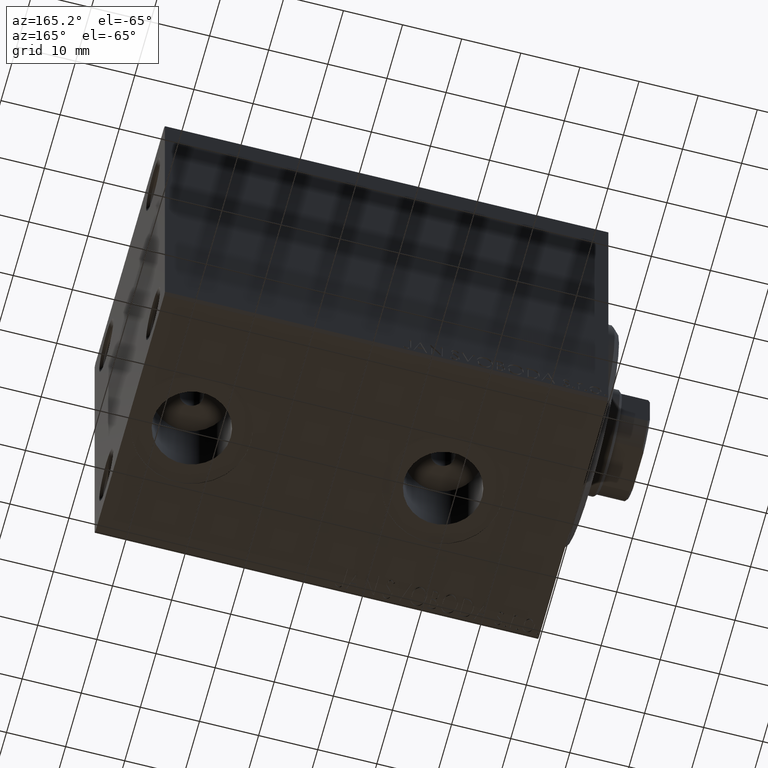
[diagram: clean part render]
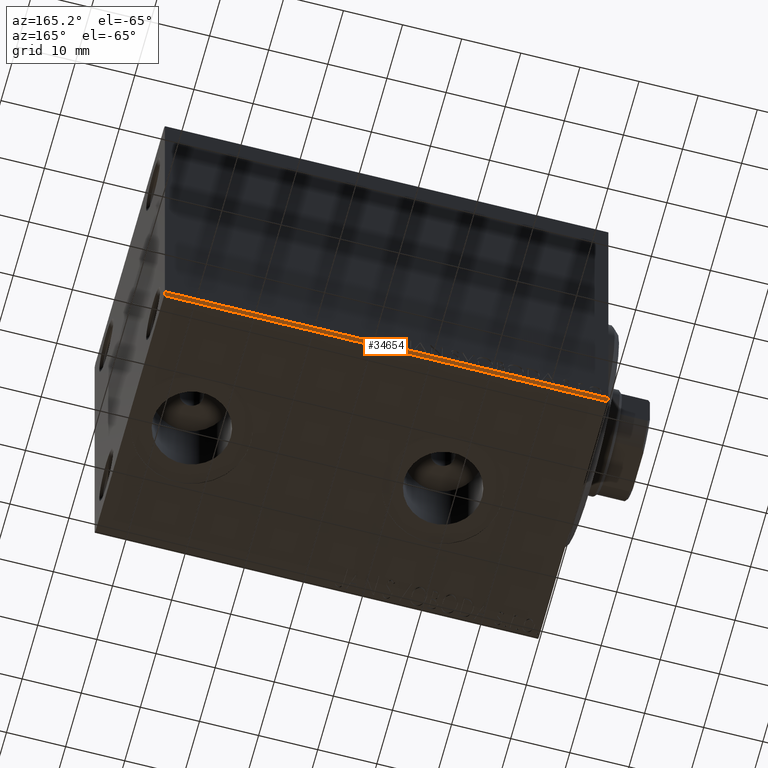
[diagram: same view with one face highlighted and labeled with its STEP entity id]
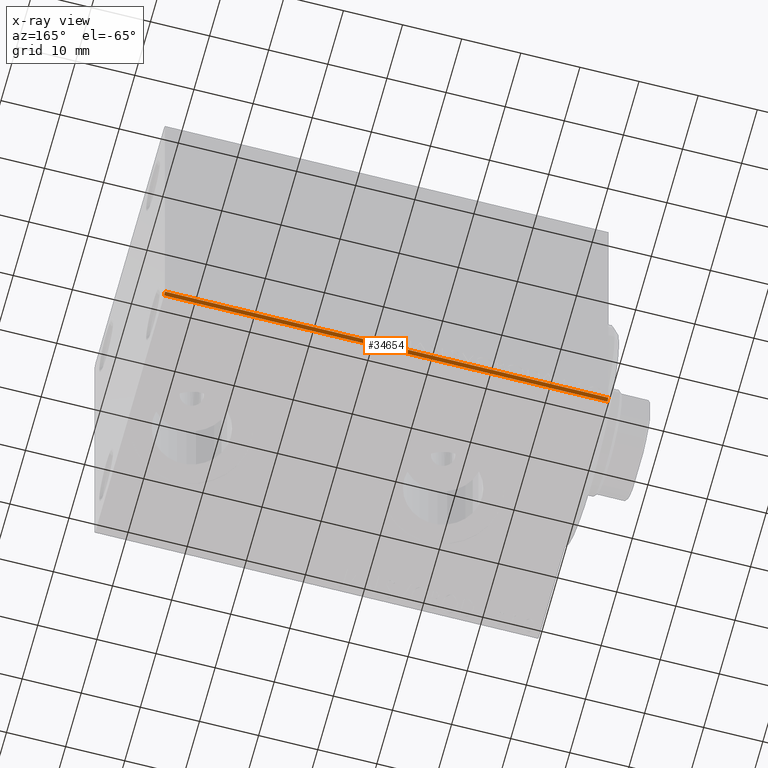
[diagram: x-ray of the same camera — body ghosted, the highlighted face saturated]
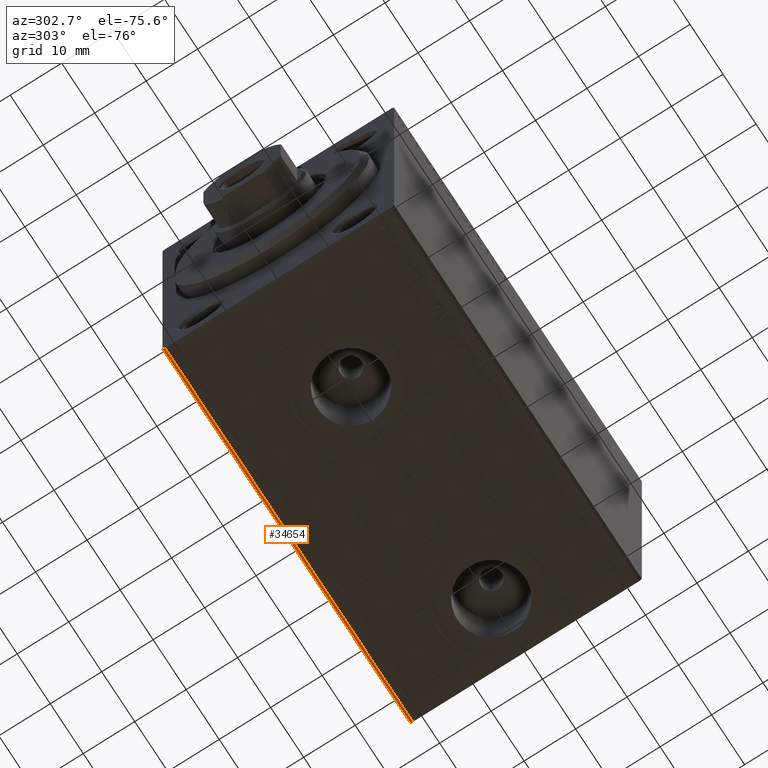
[diagram: same view with one face highlighted and labeled with its STEP entity id]
A machine part, auxiliary view. The second image highlights one B-rep face of the part: STEP entity #34654.
The next image is the same camera in x-ray: the body ghosted, the highlighted face saturated — about 0% of this face is hidden behind the body in this view.
A second angle (auxiliary view) of the same face is appended — the face is thin or edge-on in the first view.
In plain terms, the highlighted planar face has unit normal (0, -0.7071, 0.7071).
Its self-contained STEP definition (entity closure, byte-faithful):
#826 = EDGE_CURVE ( 'NONE', #36593, #33685, #36766, .T. ) ;
#2879 = CARTESIAN_POINT ( 'NONE',  ( 75.00000000000000000, 22.50000000000000711, -32.00000000000000711 ) ) ;
#4814 = VECTOR ( 'NONE', #10726, 1000.000000000000000 ) ;
#7413 = EDGE_CURVE ( 'NONE', #23906, #36593, #21330, .T. ) ;
#8327 = CARTESIAN_POINT ( 'NONE',  ( 75.00000000000000000, 22.50000000000000711, -32.00000000000000711 ) ) ;
#10244 = DIRECTION ( 'NONE',  ( -1.000000000000000000, 0.000000000000000000, 0.000000000000000000 ) ) ;
#10726 = DIRECTION ( 'NONE',  ( -0.000000000000000000, 0.7071067811865378028, 0.7071067811865573427 ) ) ;
#12015 = CARTESIAN_POINT ( 'NONE',  ( 75.00000000000000000, 22.50000000000000711, -32.00000000000000711 ) ) ;
#12555 = DIRECTION ( 'NONE',  ( 0.000000000000000000, -0.7071067811865378028, -0.7071067811865573427 ) ) ;
#13006 = LINE ( 'NONE', #26366, #45065 ) ;
#14563 = ORIENTED_EDGE ( 'NONE', *, *, #826, .F. ) ;
#14634 = PLANE ( 'NONE',  #42051 ) ;
#14971 = ORIENTED_EDGE ( 'NONE', *, *, #7413, .F. ) ;
#15135 = DIRECTION ( 'NONE',  ( 1.000000000000000000, 0.000000000000000000, 0.000000000000000000 ) ) ;
#15792 = EDGE_LOOP ( 'NONE', ( #14971, #41625, #26419, #14563 ) ) ;
#17425 = CARTESIAN_POINT ( 'NONE',  ( 75.00000000000000000, 27.25000000000032330, -27.24999999999957012 ) ) ;
#17864 = FACE_OUTER_BOUND ( 'NONE', #15792, .T. ) ;
#20016 = VERTEX_POINT ( 'NONE', #28765 ) ;
#21330 = LINE ( 'NONE', #17425, #4814 ) ;
#23881 = CARTESIAN_POINT ( 'NONE',  ( 75.00000000000000000, 22.00000000000000711, -32.50000000000000711 ) ) ;
#23906 = VERTEX_POINT ( 'NONE', #23881 ) ;
#26366 = CARTESIAN_POINT ( 'NONE',  ( 0.000000000000000000, 22.50000000000000711, -32.00000000000000711 ) ) ;
#26419 = ORIENTED_EDGE ( 'NONE', *, *, #37721, .F. ) ;
#28765 = CARTESIAN_POINT ( 'NONE',  ( 0.000000000000000000, 22.00000000000000711, -32.50000000000000711 ) ) ;
#32433 = LINE ( 'NONE', #39805, #40635 ) ;
#33685 = VERTEX_POINT ( 'NONE', #37821 ) ;
#34654 = ADVANCED_FACE ( 'NONE', ( #17864 ), #14634, .F. ) ;
#36593 = VERTEX_POINT ( 'NONE', #12015 ) ;
#36766 = LINE ( 'NONE', #2879, #44371 ) ;
#36796 = EDGE_CURVE ( 'NONE', #20016, #23906, #32433, .T. ) ;
#37721 = EDGE_CURVE ( 'NONE', #33685, #20016, #13006, .T. ) ;
#37821 = CARTESIAN_POINT ( 'NONE',  ( 0.000000000000000000, 22.50000000000000711, -32.00000000000000711 ) ) ;
#39805 = CARTESIAN_POINT ( 'NONE',  ( 75.00000000000000000, 22.00000000000002132, -32.50000000000000711 ) ) ;
#40635 = VECTOR ( 'NONE', #15135, 1000.000000000000000 ) ;
#41625 = ORIENTED_EDGE ( 'NONE', *, *, #36796, .F. ) ;
#42051 = AXIS2_PLACEMENT_3D ( 'NONE', #8327, #42533, #42305 ) ;
#42305 = DIRECTION ( 'NONE',  ( -1.000000000000000000, 0.000000000000000000, 0.000000000000000000 ) ) ;
#42533 = DIRECTION ( 'NONE',  ( 0.000000000000000000, -0.7071067811865573427, 0.7071067811865378028 ) ) ;
#44371 = VECTOR ( 'NONE', #10244, 1000.000000000000000 ) ;
#45065 = VECTOR ( 'NONE', #12555, 1000.000000000000000 ) ;